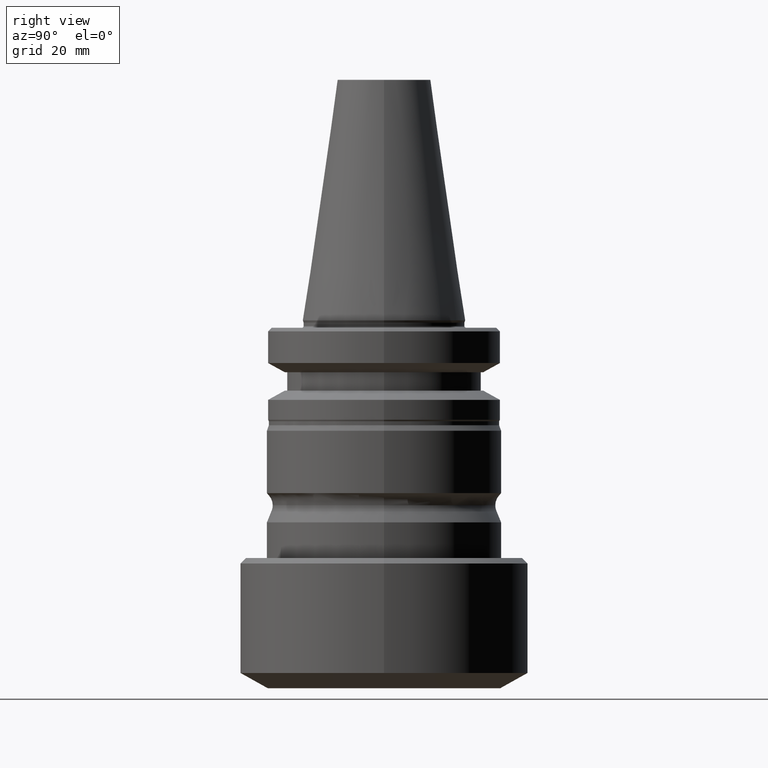
[diagram: clean part render]
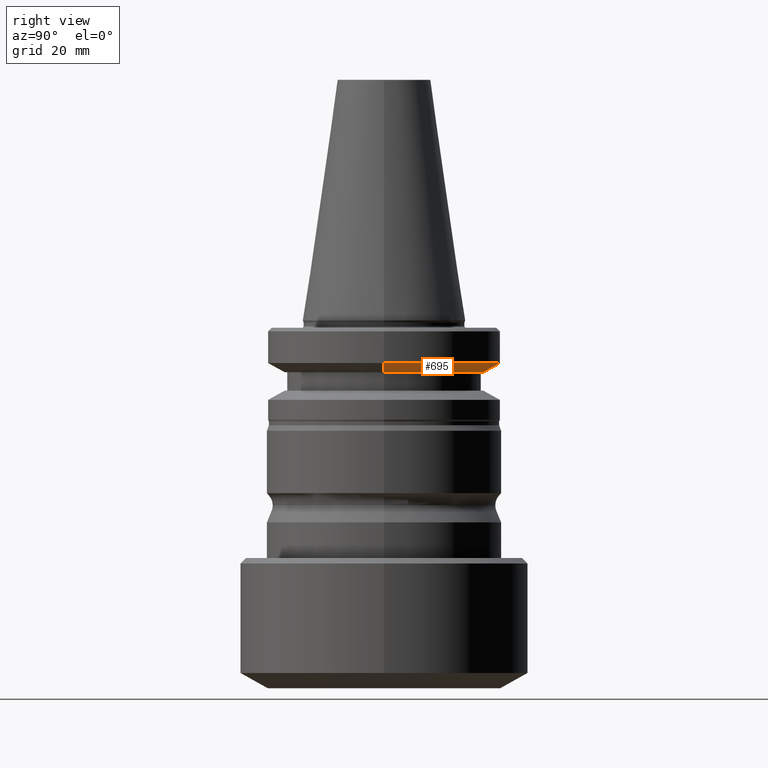
[diagram: same view with one face highlighted and labeled with its STEP entity id]
A machine part, right view. The second image highlights one B-rep face of the part: STEP entity #695.
In plain terms, the highlighted conical surface has half-angle 60 deg.
Its self-contained STEP definition (entity closure, byte-faithful):
#1 = DIRECTION ( 'NONE',  ( 1.000000000000000000, 0.0000000000000000000, 0.0000000000000000000 ) ) ;
#8 = ORIENTED_EDGE ( 'NONE', *, *, #647, .F. ) ;
#37 = CONICAL_SURFACE ( 'NONE', #193, 27.16962701892278200, 1.047197551196592100 ) ;
#80 = DIRECTION ( 'NONE',  ( -0.0000000000000000000, -0.0000000000000000000, 1.000000000000000000 ) ) ;
#95 = DIRECTION ( 'NONE',  ( 1.000000000000000000, 0.0000000000000000000, 0.0000000000000000000 ) ) ;
#119 = EDGE_CURVE ( 'NONE', #489, #478, #632, .T. ) ;
#166 = ORIENTED_EDGE ( 'NONE', *, *, #119, .T. ) ;
#179 = CARTESIAN_POINT ( 'NONE',  ( 27.16962701892278200, 0.0000000000000000000, -14.10184884169751700 ) ) ;
#190 = FACE_OUTER_BOUND ( 'NONE', #1347, .T. ) ;
#193 = AXIS2_PLACEMENT_3D ( 'NONE', #1043, #699, #1 ) ;
#282 = CARTESIAN_POINT ( 'NONE',  ( 31.49999999999997200, 0.0000000000000000000, -11.60170683538108700 ) ) ;
#337 = CARTESIAN_POINT ( 'NONE',  ( -27.16962701892278200, 3.592478546794641000E-015, -14.10184884169751700 ) ) ;
#395 = CARTESIAN_POINT ( 'NONE',  ( 0.0000000000000000000, 0.0000000000000000000, -11.60170683538108700 ) ) ;
#422 = EDGE_CURVE ( 'NONE', #478, #969, #1069, .T. ) ;
#449 = AXIS2_PLACEMENT_3D ( 'NONE', #950, #80, #1243 ) ;
#464 = DIRECTION ( 'NONE',  ( -0.8660254037844358200, 1.060575238724903300E-016, 0.5000000000000048800 ) ) ;
#478 = VERTEX_POINT ( 'NONE', #337 ) ;
#489 = VERTEX_POINT ( 'NONE', #179 ) ;
#548 = AXIS2_PLACEMENT_3D ( 'NONE', #395, #751, #95 ) ;
#632 = CIRCLE ( 'NONE', #449, 27.16962701892278200 ) ;
#647 = EDGE_CURVE ( 'NONE', #1348, #969, #831, .T. ) ;
#695 = ADVANCED_FACE ( 'NONE', ( #190 ), #37, .T. ) ;
#699 = DIRECTION ( 'NONE',  ( -0.0000000000000000000, -0.0000000000000000000, 1.000000000000000000 ) ) ;
#711 = EDGE_CURVE ( 'NONE', #489, #1348, #715, .T. ) ;
#715 = LINE ( 'NONE', #1210, #767 ) ;
#751 = DIRECTION ( 'NONE',  ( -0.0000000000000000000, -0.0000000000000000000, 1.000000000000000000 ) ) ;
#767 = VECTOR ( 'NONE', #1392, 1000.000000000000100 ) ;
#781 = CARTESIAN_POINT ( 'NONE',  ( -31.49999999999997200, 3.857637417314159500E-015, -11.60170683538108700 ) ) ;
#831 = CIRCLE ( 'NONE', #548, 31.49999999999997200 ) ;
#890 = VECTOR ( 'NONE', #464, 1000.000000000000100 ) ;
#948 = ORIENTED_EDGE ( 'NONE', *, *, #422, .T. ) ;
#950 = CARTESIAN_POINT ( 'NONE',  ( 0.0000000000000000000, 0.0000000000000000000, -14.10184884169751700 ) ) ;
#969 = VERTEX_POINT ( 'NONE', #781 ) ;
#1010 = CARTESIAN_POINT ( 'NONE',  ( -27.16962701892278200, 3.327319676275122900E-015, -14.10184884169751700 ) ) ;
#1043 = CARTESIAN_POINT ( 'NONE',  ( 0.0000000000000000000, 0.0000000000000000000, -14.10184884169751700 ) ) ;
#1069 = LINE ( 'NONE', #1010, #890 ) ;
#1210 = CARTESIAN_POINT ( 'NONE',  ( 27.16962701892278200, 0.0000000000000000000, -14.10184884169751700 ) ) ;
#1243 = DIRECTION ( 'NONE',  ( 1.000000000000000000, 0.0000000000000000000, 0.0000000000000000000 ) ) ;
#1254 = ORIENTED_EDGE ( 'NONE', *, *, #711, .F. ) ;
#1347 = EDGE_LOOP ( 'NONE', ( #166, #948, #8, #1254 ) ) ;
#1348 = VERTEX_POINT ( 'NONE', #282 ) ;
#1392 = DIRECTION ( 'NONE',  ( 0.8660254037844358200, 0.0000000000000000000, 0.5000000000000048800 ) ) ;